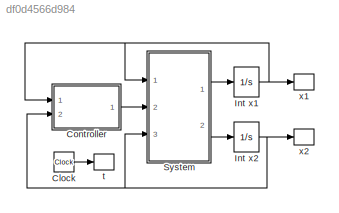
MODEL slx_df0d4566d984
KIND model
CONFIG AbsTol = auto
CONFIG FixedStep = t_step
CONFIG MaxStep = auto
CONFIG MinStep = auto
CONFIG RelTol = 1e-3
CONFIG SampleTimeConstraint = Unconstrained
CONFIG Solver = ode3
CONFIG SolverMode = Auto
CONFIG SolverName = ode3
CONFIG StartTime = 0.0
CONFIG StopTime = tf
BLOCK [Clock] Clock
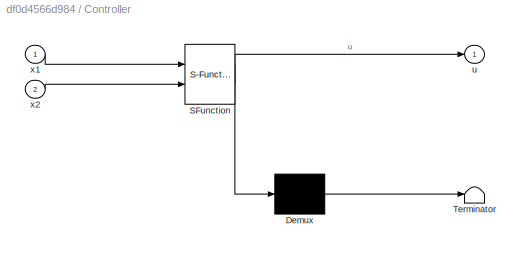
BLOCK [SubSystem] Controller
  ErrorFcn = Stateflow.Translate.translate
  PermitHierarchicalResolution = ExplicitOnly
  Ports = [2, 1]
  RequestExecContextInheritance = off
  SFBlockType = MATLAB Function
  TreatAsAtomicUnit = on
BLOCK [Demux] Controller/ Demux 
  Outputs = 1
  Ports = [1, 1]
BLOCK [S-Function] Controller/ SFunction 
  EnableBusSupport = on
  FunctionName = sf_sfun
  Parameters = K0,K1,r
  PortCounts = [2 2]
  Ports = [2, 2]
  Tag = Stateflow S-Function L2_Q1_Sim 2
BLOCK [Terminator] Controller/ Terminator 
BLOCK [Outport] Controller/u
  IconDisplay = Port number
BLOCK [Inport] Controller/x1
  IconDisplay = Port number
BLOCK [Inport] Controller/x2
  IconDisplay = Port number
  Port = 2
BLOCK [Integrator] Int x1
  Ports = [1, 1]
BLOCK [Integrator] Int x2
  Ports = [1, 1]
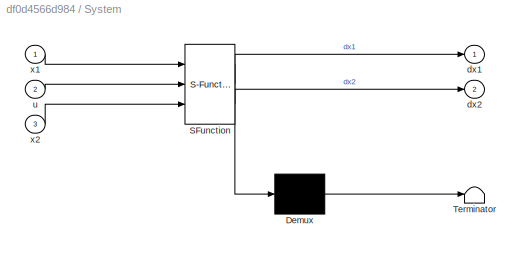
BLOCK [SubSystem] System
  ErrorFcn = Stateflow.Translate.translate
  PermitHierarchicalResolution = ExplicitOnly
  Ports = [3, 2]
  RequestExecContextInheritance = off
  SFBlockType = MATLAB Function
  TreatAsAtomicUnit = on
BLOCK [Demux] System/ Demux 
  Outputs = 1
  Ports = [1, 1]
BLOCK [S-Function] System/ SFunction 
  EnableBusSupport = on
  FunctionName = sf_sfun
  PortCounts = [3 3]
  Ports = [3, 3]
  Tag = Stateflow S-Function L2_Q1_Sim 1
BLOCK [Terminator] System/ Terminator 
BLOCK [Outport] System/dx1
  IconDisplay = Port number
BLOCK [Outport] System/dx2
  IconDisplay = Port number
  Port = 2
BLOCK [Inport] System/u
  IconDisplay = Port number
  Port = 2
BLOCK [Inport] System/x1
  IconDisplay = Port number
BLOCK [Inport] System/x2
  IconDisplay = Port number
  Port = 3
BLOCK [ToWorkspace] t
  FixptAsFi = on
  MaxDataPoints = inf
  Ports = [1]
  SampleTime = -1
  Save2DSignal = 3-D array (concatenate along third dimension)
  VariableName = t
BLOCK [ToWorkspace] x1
  FixptAsFi = on
  MaxDataPoints = inf
  Ports = [1]
  SampleTime = -1
  Save2DSignal = 3-D array (concatenate along third dimension)
  VariableName = x1
BLOCK [ToWorkspace] x2
  FixptAsFi = on
  MaxDataPoints = inf
  Ports = [1]
  SampleTime = -1
  Save2DSignal = 3-D array (concatenate along third dimension)
  VariableName = x2
LINE Clock:1 -> t:1
LINE Controller:1 -> System:2
NET Int x1:1 -> Controller:1, System:1, x1:1
NET Int x2:1 -> Controller:2, System:3, x2:1
LINE System:1 -> Int x1:1
LINE System:2 -> Int x2:1
note: NET lines group one-source signal fan-out (src -> all destinations, sorted); 1:1 wires keep LINE
CHART System states=1 transitions=1
  STATE_LABEL 'eML_blk_kernel()'
  STATE_LABEL 'SCRIPT:\nfunction [dx1, dx2] = fcn(x1, u, x2)\ndx1 = x1^2 + x2;\ndx2 = u;'
CHART Controller states=1 transitions=1
  STATE_LABEL 'eML_blk_kernel()'
  STATE_LABEL 'SCRIPT:\nfunction u = fcn(x1, x2, K1, K0, r)\nv = - K1 * (x1^2 + x2) - K0 * (x1 - r);\nu = v - 2*x1^3 - 2*x1*x2;'
